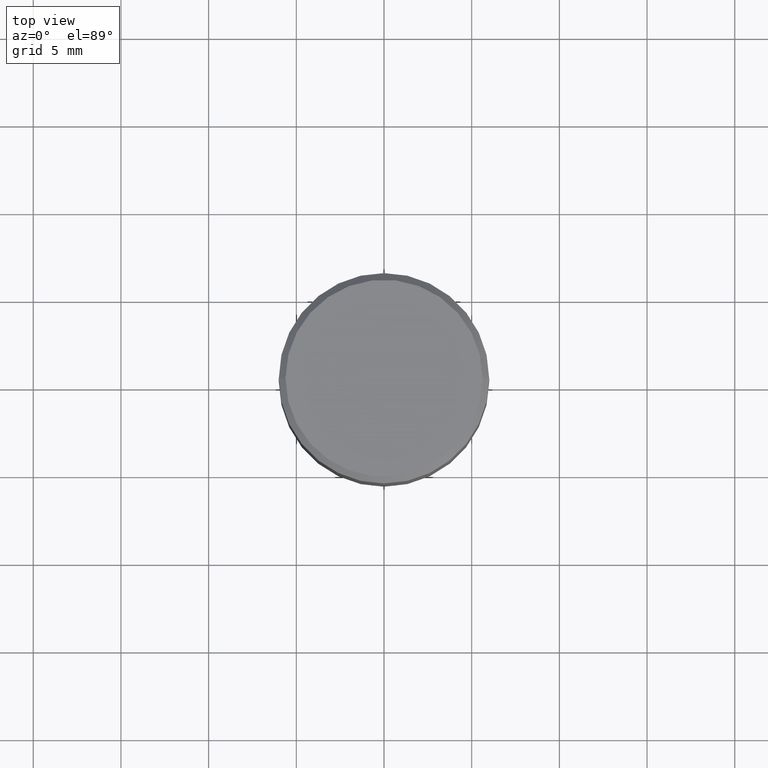
[diagram: clean part render]
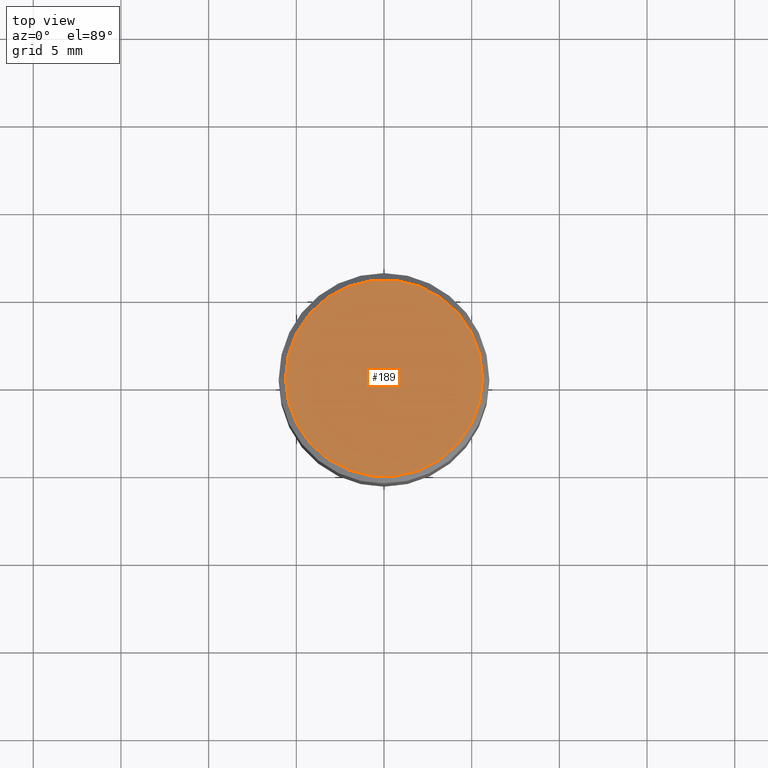
[diagram: same view with one face highlighted and labeled with its STEP entity id]
A machine part, top view. The second image highlights one B-rep face of the part: STEP entity #189.
In plain terms, the highlighted planar face has unit normal (0, -0, -1).
Its self-contained STEP definition (entity closure, byte-faithful):
#24 = CIRCLE ( 'NONE', #228, 0.2212000000000000077 ) ;
#31 = DIRECTION ( 'NONE',  ( 2.438088387897960049E-29, -3.491481338843145188E-15, -1.000000000000000000 ) ) ;
#47 = VERTEX_POINT ( 'NONE', #94 ) ;
#78 = PLANE ( 'NONE',  #92 ) ;
#79 = EDGE_LOOP ( 'NONE', ( #180, #454 ) ) ;
#86 = DIRECTION ( 'NONE',  ( -2.445468806185136597E-29, 3.491481338843145583E-15, 1.000000000000000000 ) ) ;
#92 = AXIS2_PLACEMENT_3D ( 'NONE', #260, #31, #100 ) ;
#94 = CARTESIAN_POINT ( 'NONE',  ( -0.2212000000000000077, 1.570817454345525709E-15, 4.701447564591266586E-17 ) ) ;
#100 = DIRECTION ( 'NONE',  ( -1.000000000000000000, 6.982962677686265922E-15, -4.876176775795935793E-29 ) ) ;
#117 = FACE_OUTER_BOUND ( 'NONE', #79, .T. ) ;
#177 = EDGE_CURVE ( 'NONE', #47, #253, #225, .T. ) ;
#180 = ORIENTED_EDGE ( 'NONE', *, *, #177, .T. ) ;
#189 = ADVANCED_FACE ( 'NONE', ( #117 ), #78, .F. ) ;
#211 = DIRECTION ( 'NONE',  ( -2.445468806185136597E-29, 3.491481338843145583E-15, 1.000000000000000000 ) ) ;
#225 = CIRCLE ( 'NONE', #342, 0.2212000000000000077 ) ;
#228 = AXIS2_PLACEMENT_3D ( 'NONE', #256, #86, #298 ) ;
#245 = CARTESIAN_POINT ( 'NONE',  ( 0.2212000000000000077, -1.595182002131672613E-15, 4.701447564593453826E-17 ) ) ;
#253 = VERTEX_POINT ( 'NONE', #245 ) ;
#256 = CARTESIAN_POINT ( 'NONE',  ( -1.149724336312568861E-45, 1.641501643732376549E-31, 4.701447564592356200E-17 ) ) ;
#257 = CARTESIAN_POINT ( 'NONE',  ( -1.149724336312568861E-45, 1.641501643732376549E-31, 4.701447564592356200E-17 ) ) ;
#260 = CARTESIAN_POINT ( 'NONE',  ( 1.544631344304202170E-15, 0.2212000000000000077, -7.488084343291421542E-16 ) ) ;
#298 = DIRECTION ( 'NONE',  ( 1.000000000000000000, -6.982962677686267499E-15, 4.877828720335458505E-29 ) ) ;
#304 = EDGE_CURVE ( 'NONE', #253, #47, #24, .T. ) ;
#342 = AXIS2_PLACEMENT_3D ( 'NONE', #257, #211, #372 ) ;
#372 = DIRECTION ( 'NONE',  ( 1.000000000000000000, -6.982962677686267499E-15, 4.877828720335458505E-29 ) ) ;
#454 = ORIENTED_EDGE ( 'NONE', *, *, #304, .T. ) ;